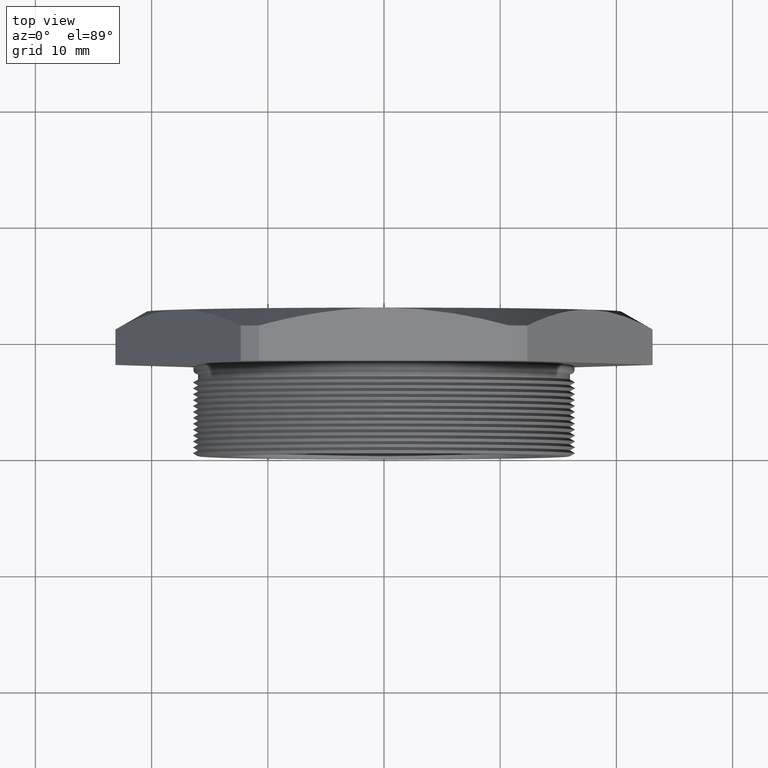
[diagram: clean part render]
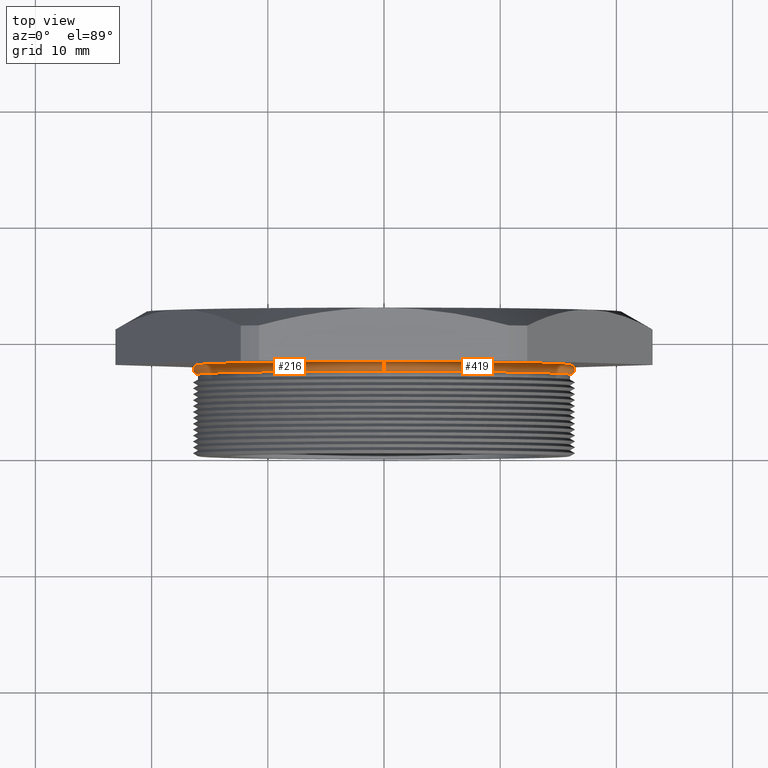
[diagram: same view with one multi-face feature highlighted, each face labeled with its STEP entity id]
A machine part, top view. The highlighted faces form ONE feature: a constant-radius fillet chain: 2 tangent blend faces with common blend radius 0.4089 mm. The faces share edges in the B-rep.
Their STEP definitions:
[1] entity #216 (Torus):
#122 = EDGE_CURVE ( 'NONE', #414, #358, #950, .T. ) ;
#180 = ORIENTED_EDGE ( 'NONE', *, *, #485, .T. ) ;
#181 = ORIENTED_EDGE ( 'NONE', *, *, #411, .F. ) ;
#199 = EDGE_LOOP ( 'NONE', ( #181, #180, #257, #247 ) ) ;
#216 = ADVANCED_FACE ( 'NONE', ( #1112 ), #1111, .T. ) ;
#247 = ORIENTED_EDGE ( 'NONE', *, *, #656, .T. ) ;
#257 = ORIENTED_EDGE ( 'NONE', *, *, #122, .T. ) ;
#358 = VERTEX_POINT ( 'NONE', #1365 ) ;
#408 = VERTEX_POINT ( 'NONE', #1455 ) ;
#410 = VERTEX_POINT ( 'NONE', #1454 ) ;
#411 = EDGE_CURVE ( 'NONE', #408, #410, #1453, .T. ) ;
#414 = VERTEX_POINT ( 'NONE', #1448 ) ;
#485 = EDGE_CURVE ( 'NONE', #408, #414, #1590, .T. ) ;
#656 = EDGE_CURVE ( 'NONE', #358, #410, #1930, .T. ) ;
#946 = DIRECTION ( 'NONE',  ( 0.0000000000000000000, 0.0000000000000000000, 1.000000000000000000 ) ) ;
#947 = DIRECTION ( 'NONE',  ( -1.000000000000000000, 0.0000000000000000000, 0.0000000000000000000 ) ) ;
#948 = CARTESIAN_POINT ( 'NONE',  ( 0.0000000000000000000, 0.2939010259262581100, -0.6300000000000000000 ) ) ;
#949 = AXIS2_PLACEMENT_3D ( 'NONE', #948, #947, #946 ) ;
#950 = CIRCLE ( 'NONE', #949, 0.01609897407374182000 ) ;
#1106 = DIRECTION ( 'NONE',  ( 0.0000000000000000000, 0.0000000000000000000, -1.000000000000000000 ) ) ;
#1107 = DIRECTION ( 'NONE',  ( 0.0000000000000000000, -1.000000000000000000, 0.0000000000000000000 ) ) ;
#1108 = CARTESIAN_POINT ( 'NONE',  ( 0.0000000000000000000, 0.2939010259262581100, 0.0000000000000000000 ) ) ;
#1109 = AXIS2_PLACEMENT_3D ( 'NONE', #1108, #1107, #1106 ) ;
#1111 = TOROIDAL_SURFACE ( 'NONE', #1109, 0.6300000000000000000, 0.01609897407374179600 ) ;
#1112 = FACE_OUTER_BOUND ( 'NONE', #199, .T. ) ;
#1365 = CARTESIAN_POINT ( 'NONE',  ( 0.0000000000000000000, 0.2778020518525162700, -0.6300000000000000000 ) ) ;
#1448 = CARTESIAN_POINT ( 'NONE',  ( 0.0000000000000000000, 0.3100000000000000000, -0.6300000000000000000 ) ) ;
#1449 = DIRECTION ( 'NONE',  ( -1.224646799147351000E-016, 0.0000000000000000000, -1.000000000000000000 ) ) ;
#1450 = DIRECTION ( 'NONE',  ( 1.000000000000000000, 0.0000000000000000000, -1.224646799147353200E-016 ) ) ;
#1451 = CARTESIAN_POINT ( 'NONE',  ( 7.715274834628325400E-017, 0.2939010259262581100, 0.6300000000000000000 ) ) ;
#1452 = AXIS2_PLACEMENT_3D ( 'NONE', #1451, #1450, #1449 ) ;
#1453 = CIRCLE ( 'NONE', #1452, 0.01609897407374182000 ) ;
#1454 = CARTESIAN_POINT ( 'NONE',  ( 7.715274834628325400E-017, 0.2778020518525162700, 0.6300000000000000000 ) ) ;
#1455 = CARTESIAN_POINT ( 'NONE',  ( 7.715274834628325400E-017, 0.3100000000000000000, 0.6300000000000000000 ) ) ;
#1579 = DIRECTION ( 'NONE',  ( 0.0000000000000000000, 0.0000000000000000000, -1.000000000000000000 ) ) ;
#1580 = DIRECTION ( 'NONE',  ( 0.0000000000000000000, -1.000000000000000000, 0.0000000000000000000 ) ) ;
#1581 = AXIS2_PLACEMENT_3D ( 'NONE', #1592, #1580, #1579 ) ;
#1590 = CIRCLE ( 'NONE', #1581, 0.6300000000000000000 ) ;
#1592 = CARTESIAN_POINT ( 'NONE',  ( 0.0000000000000000000, 0.3100000000000000000, 0.0000000000000000000 ) ) ;
#1926 = DIRECTION ( 'NONE',  ( 0.0000000000000000000, 0.0000000000000000000, 1.000000000000000000 ) ) ;
#1927 = DIRECTION ( 'NONE',  ( 0.0000000000000000000, 1.000000000000000000, 0.0000000000000000000 ) ) ;
#1928 = CARTESIAN_POINT ( 'NONE',  ( 0.0000000000000000000, 0.2778020518525162700, 0.0000000000000000000 ) ) ;
#1929 = AXIS2_PLACEMENT_3D ( 'NONE', #1928, #1927, #1926 ) ;
#1930 = CIRCLE ( 'NONE', #1929, 0.6300000000000000000 ) ;
[2] entity #419 (Torus):
#122 = EDGE_CURVE ( 'NONE', #414, #358, #950, .T. ) ;
#358 = VERTEX_POINT ( 'NONE', #1365 ) ;
#393 = ORIENTED_EDGE ( 'NONE', *, *, #122, .F. ) ;
#400 = EDGE_CURVE ( 'NONE', #410, #358, #1413, .T. ) ;
#408 = VERTEX_POINT ( 'NONE', #1455 ) ;
#409 = ORIENTED_EDGE ( 'NONE', *, *, #411, .T. ) ;
#410 = VERTEX_POINT ( 'NONE', #1454 ) ;
#411 = EDGE_CURVE ( 'NONE', #408, #410, #1453, .T. ) ;
#412 = ORIENTED_EDGE ( 'NONE', *, *, #400, .T. ) ;
#414 = VERTEX_POINT ( 'NONE', #1448 ) ;
#415 = EDGE_LOOP ( 'NONE', ( #418, #409, #412, #393 ) ) ;
#416 = EDGE_CURVE ( 'NONE', #414, #408, #1447, .T. ) ;
#418 = ORIENTED_EDGE ( 'NONE', *, *, #416, .T. ) ;
#419 = ADVANCED_FACE ( 'NONE', ( #1442 ), #1441, .T. ) ;
#946 = DIRECTION ( 'NONE',  ( 0.0000000000000000000, 0.0000000000000000000, 1.000000000000000000 ) ) ;
#947 = DIRECTION ( 'NONE',  ( -1.000000000000000000, 0.0000000000000000000, 0.0000000000000000000 ) ) ;
#948 = CARTESIAN_POINT ( 'NONE',  ( 0.0000000000000000000, 0.2939010259262581100, -0.6300000000000000000 ) ) ;
#949 = AXIS2_PLACEMENT_3D ( 'NONE', #948, #947, #946 ) ;
#950 = CIRCLE ( 'NONE', #949, 0.01609897407374182000 ) ;
#1365 = CARTESIAN_POINT ( 'NONE',  ( 0.0000000000000000000, 0.2778020518525162700, -0.6300000000000000000 ) ) ;
#1411 = CARTESIAN_POINT ( 'NONE',  ( 0.0000000000000000000, 0.2778020518525162700, 0.0000000000000000000 ) ) ;
#1412 = AXIS2_PLACEMENT_3D ( 'NONE', #1411, #1474, #1473 ) ;
#1413 = CIRCLE ( 'NONE', #1412, 0.6300000000000000000 ) ;
#1441 = TOROIDAL_SURFACE ( 'NONE', #1507, 0.6300000000000000000, 0.01609897407374179600 ) ;
#1442 = FACE_OUTER_BOUND ( 'NONE', #415, .T. ) ;
#1443 = DIRECTION ( 'NONE',  ( 0.0000000000000000000, 0.0000000000000000000, -1.000000000000000000 ) ) ;
#1444 = DIRECTION ( 'NONE',  ( 0.0000000000000000000, -1.000000000000000000, 0.0000000000000000000 ) ) ;
#1445 = CARTESIAN_POINT ( 'NONE',  ( 0.0000000000000000000, 0.3100000000000000000, 0.0000000000000000000 ) ) ;
#1446 = AXIS2_PLACEMENT_3D ( 'NONE', #1445, #1444, #1443 ) ;
#1447 = CIRCLE ( 'NONE', #1446, 0.6300000000000000000 ) ;
#1448 = CARTESIAN_POINT ( 'NONE',  ( 0.0000000000000000000, 0.3100000000000000000, -0.6300000000000000000 ) ) ;
#1449 = DIRECTION ( 'NONE',  ( -1.224646799147351000E-016, 0.0000000000000000000, -1.000000000000000000 ) ) ;
#1450 = DIRECTION ( 'NONE',  ( 1.000000000000000000, 0.0000000000000000000, -1.224646799147353200E-016 ) ) ;
#1451 = CARTESIAN_POINT ( 'NONE',  ( 7.715274834628325400E-017, 0.2939010259262581100, 0.6300000000000000000 ) ) ;
#1452 = AXIS2_PLACEMENT_3D ( 'NONE', #1451, #1450, #1449 ) ;
#1453 = CIRCLE ( 'NONE', #1452, 0.01609897407374182000 ) ;
#1454 = CARTESIAN_POINT ( 'NONE',  ( 7.715274834628325400E-017, 0.2778020518525162700, 0.6300000000000000000 ) ) ;
#1455 = CARTESIAN_POINT ( 'NONE',  ( 7.715274834628325400E-017, 0.3100000000000000000, 0.6300000000000000000 ) ) ;
#1473 = DIRECTION ( 'NONE',  ( 0.0000000000000000000, 0.0000000000000000000, 1.000000000000000000 ) ) ;
#1474 = DIRECTION ( 'NONE',  ( 0.0000000000000000000, 1.000000000000000000, 0.0000000000000000000 ) ) ;
#1503 = DIRECTION ( 'NONE',  ( 0.0000000000000000000, 0.0000000000000000000, -1.000000000000000000 ) ) ;
#1504 = DIRECTION ( 'NONE',  ( 0.0000000000000000000, -1.000000000000000000, 0.0000000000000000000 ) ) ;
#1505 = CARTESIAN_POINT ( 'NONE',  ( 0.0000000000000000000, 0.2939010259262581100, 0.0000000000000000000 ) ) ;
#1507 = AXIS2_PLACEMENT_3D ( 'NONE', #1505, #1504, #1503 ) ;